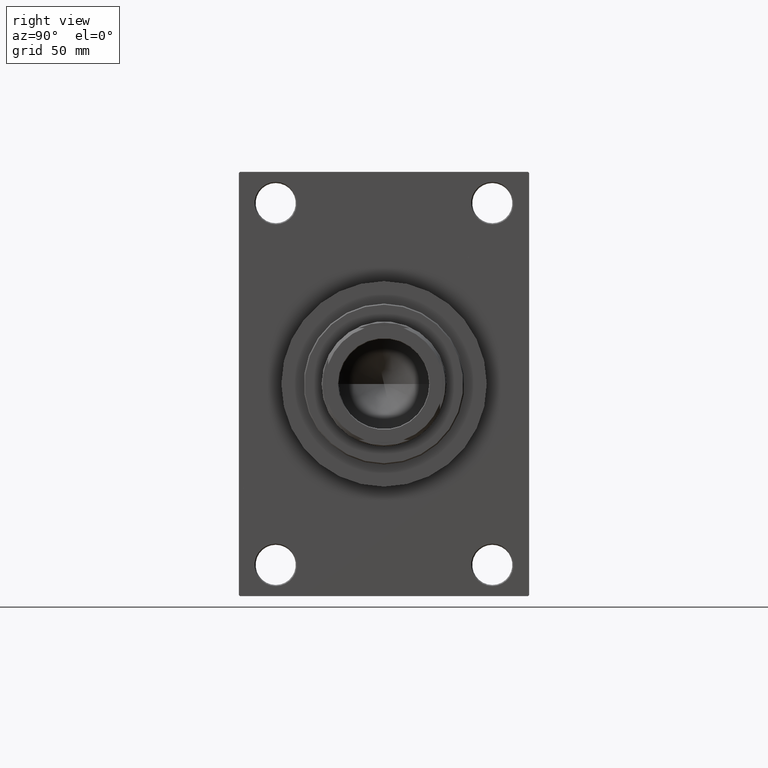
[diagram: clean part render]
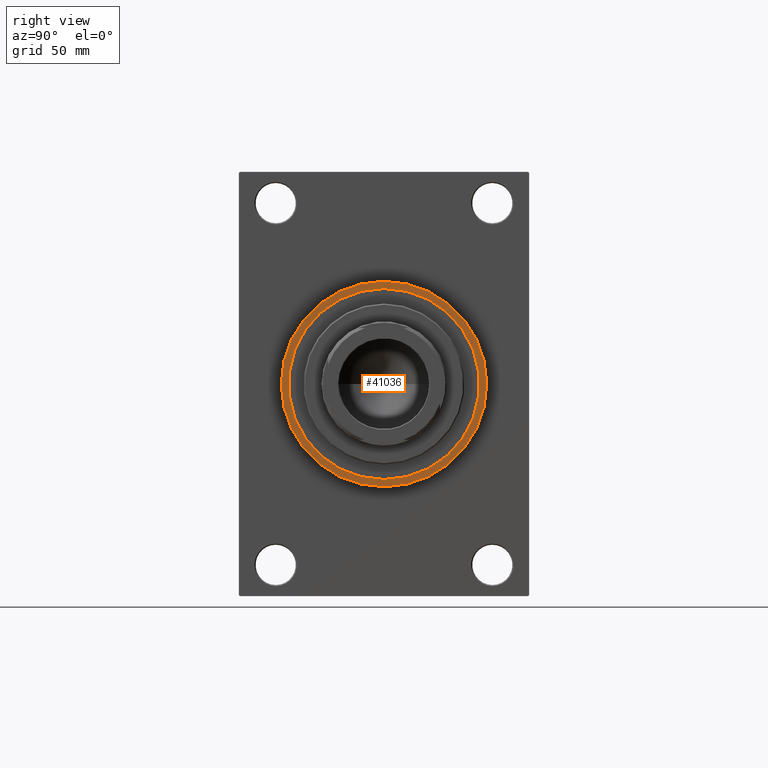
[diagram: same view with one face highlighted and labeled with its STEP entity id]
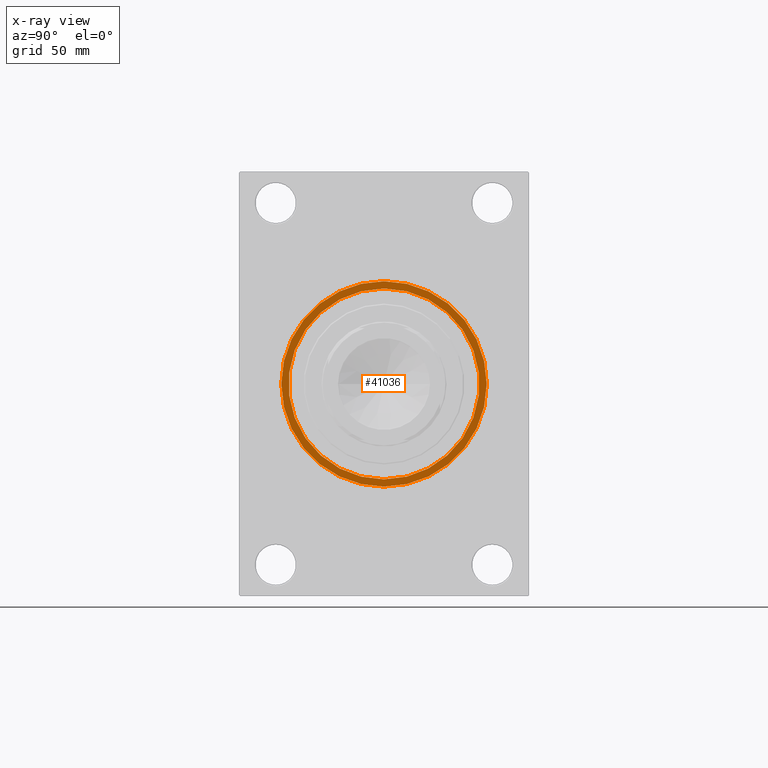
[diagram: x-ray of the same camera — body ghosted, the highlighted face saturated]
A machine part, right view. The second image highlights one B-rep face of the part: STEP entity #41036.
The next image is the same camera in x-ray: the body ghosted, the highlighted face saturated — about 0% of this face is hidden behind the body in this view.
In plain terms, the highlighted planar face has unit normal (1, 0, 0).
Its self-contained STEP definition (entity closure, byte-faithful):
#1292 = DIRECTION ( 'NONE',  ( 0.000000000000000000, 0.000000000000000000, -1.000000000000000000 ) ) ;
#3711 = ORIENTED_EDGE ( 'NONE', *, *, #32862, .T. ) ;
#4882 = CARTESIAN_POINT ( 'NONE',  ( 178.0000000000000000, 0.000000000000000000, 0.000000000000000000 ) ) ;
#6237 = AXIS2_PLACEMENT_3D ( 'NONE', #20297, #12880, #40215 ) ;
#7140 = CARTESIAN_POINT ( 'NONE',  ( 178.0000000000000000, 0.000000000000000000, 46.00000000000000000 ) ) ;
#8591 = CARTESIAN_POINT ( 'NONE',  ( 178.0000000000000000, 0.000000000000000000, 0.000000000000000000 ) ) ;
#11079 = ORIENTED_EDGE ( 'NONE', *, *, #22229, .F. ) ;
#11290 = CARTESIAN_POINT ( 'NONE',  ( 178.0000000000000000, 0.000000000000000000, -42.75000000000000000 ) ) ;
#11749 = CIRCLE ( 'NONE', #18829, 42.75000000000000000 ) ;
#12298 = PLANE ( 'NONE',  #23183 ) ;
#12538 = DIRECTION ( 'NONE',  ( 1.000000000000000000, 0.000000000000000000, 0.000000000000000000 ) ) ;
#12880 = DIRECTION ( 'NONE',  ( 1.000000000000000000, 0.000000000000000000, 0.000000000000000000 ) ) ;
#13274 = AXIS2_PLACEMENT_3D ( 'NONE', #46224, #19591, #1292 ) ;
#13988 = ORIENTED_EDGE ( 'NONE', *, *, #33378, .F. ) ;
#18829 = AXIS2_PLACEMENT_3D ( 'NONE', #8591, #41455, #30813 ) ;
#19591 = DIRECTION ( 'NONE',  ( 1.000000000000000000, 0.000000000000000000, 0.000000000000000000 ) ) ;
#20096 = VERTEX_POINT ( 'NONE', #7140 ) ;
#20297 = CARTESIAN_POINT ( 'NONE',  ( 178.0000000000000000, 0.000000000000000000, 0.000000000000000000 ) ) ;
#21370 = DIRECTION ( 'NONE',  ( 1.000000000000000000, 0.000000000000000000, 0.000000000000000000 ) ) ;
#22229 = EDGE_CURVE ( 'NONE', #45309, #45584, #23268, .T. ) ;
#23183 = AXIS2_PLACEMENT_3D ( 'NONE', #4882, #12538, #23641 ) ;
#23268 = CIRCLE ( 'NONE', #24056, 42.75000000000000000 ) ;
#23641 = DIRECTION ( 'NONE',  ( 0.000000000000000000, 0.000000000000000000, -1.000000000000000000 ) ) ;
#24056 = AXIS2_PLACEMENT_3D ( 'NONE', #33209, #21370, #32966 ) ;
#29045 = ORIENTED_EDGE ( 'NONE', *, *, #35262, .T. ) ;
#30813 = DIRECTION ( 'NONE',  ( 0.000000000000000000, 0.000000000000000000, -1.000000000000000000 ) ) ;
#31791 = CARTESIAN_POINT ( 'NONE',  ( 178.0000000000000000, 5.235365066354935472E-15, 42.75000000000000000 ) ) ;
#32862 = EDGE_CURVE ( 'NONE', #20096, #38599, #42446, .T. ) ;
#32946 = EDGE_LOOP ( 'NONE', ( #3711, #29045 ) ) ;
#32966 = DIRECTION ( 'NONE',  ( 0.000000000000000000, 0.000000000000000000, -1.000000000000000000 ) ) ;
#33209 = CARTESIAN_POINT ( 'NONE',  ( 178.0000000000000000, 0.000000000000000000, 0.000000000000000000 ) ) ;
#33378 = EDGE_CURVE ( 'NONE', #45584, #45309, #11749, .T. ) ;
#33993 = CARTESIAN_POINT ( 'NONE',  ( 178.0000000000000000, 5.633375276077824704E-15, -46.00000000000000000 ) ) ;
#34989 = FACE_BOUND ( 'NONE', #38371, .T. ) ;
#35262 = EDGE_CURVE ( 'NONE', #38599, #20096, #43306, .T. ) ;
#38371 = EDGE_LOOP ( 'NONE', ( #13988, #11079 ) ) ;
#38599 = VERTEX_POINT ( 'NONE', #33993 ) ;
#40215 = DIRECTION ( 'NONE',  ( 0.000000000000000000, 0.000000000000000000, -1.000000000000000000 ) ) ;
#41036 = ADVANCED_FACE ( 'NONE', ( #34989, #46353 ), #12298, .T. ) ;
#41455 = DIRECTION ( 'NONE',  ( 1.000000000000000000, 0.000000000000000000, 0.000000000000000000 ) ) ;
#42446 = CIRCLE ( 'NONE', #13274, 46.00000000000000000 ) ;
#43306 = CIRCLE ( 'NONE', #6237, 46.00000000000000000 ) ;
#45309 = VERTEX_POINT ( 'NONE', #31791 ) ;
#45584 = VERTEX_POINT ( 'NONE', #11290 ) ;
#46224 = CARTESIAN_POINT ( 'NONE',  ( 178.0000000000000000, 0.000000000000000000, 0.000000000000000000 ) ) ;
#46353 = FACE_OUTER_BOUND ( 'NONE', #32946, .T. ) ;